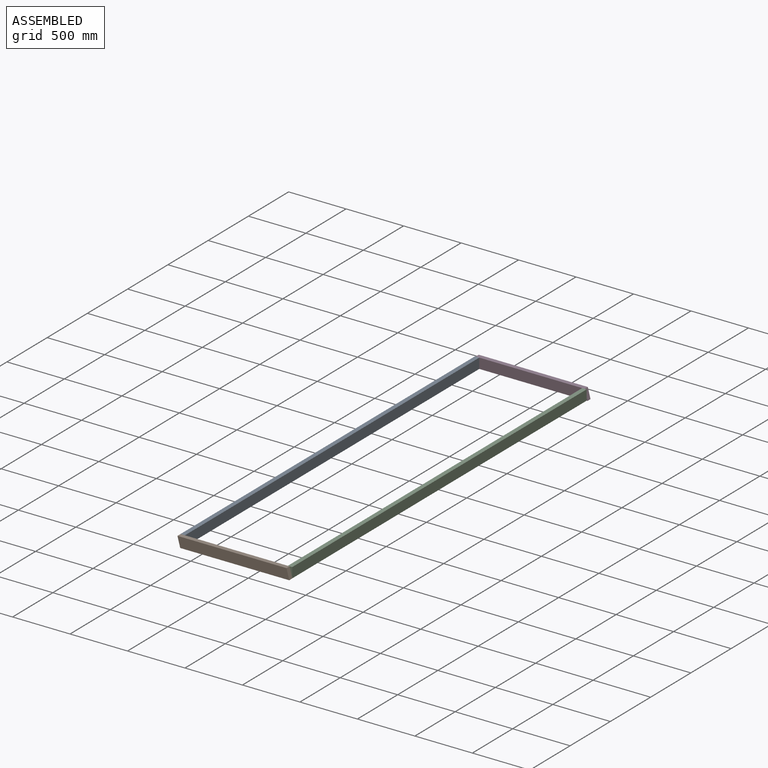
[diagram: assembled view]
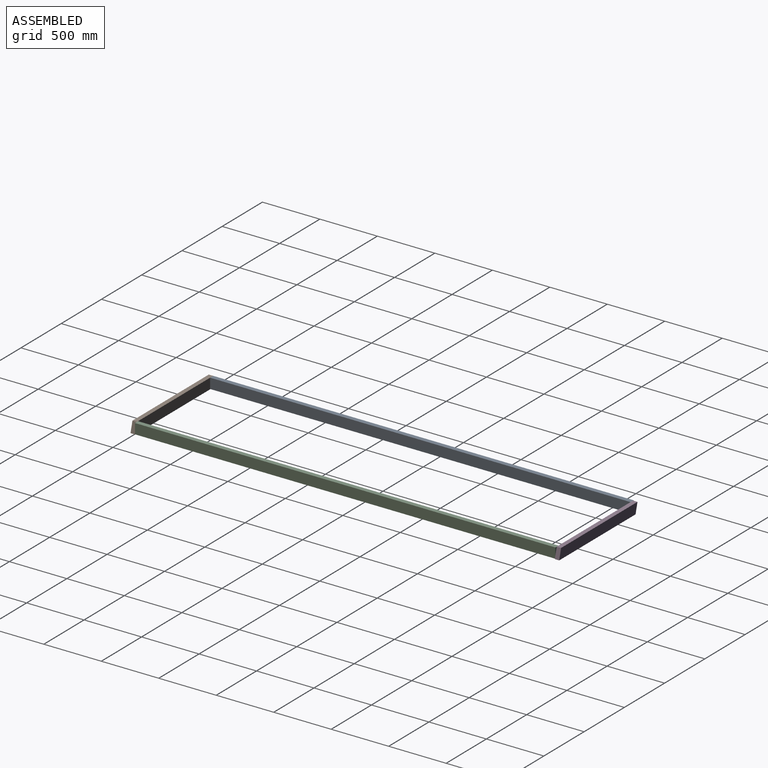
[diagram: assembled view, second angle]
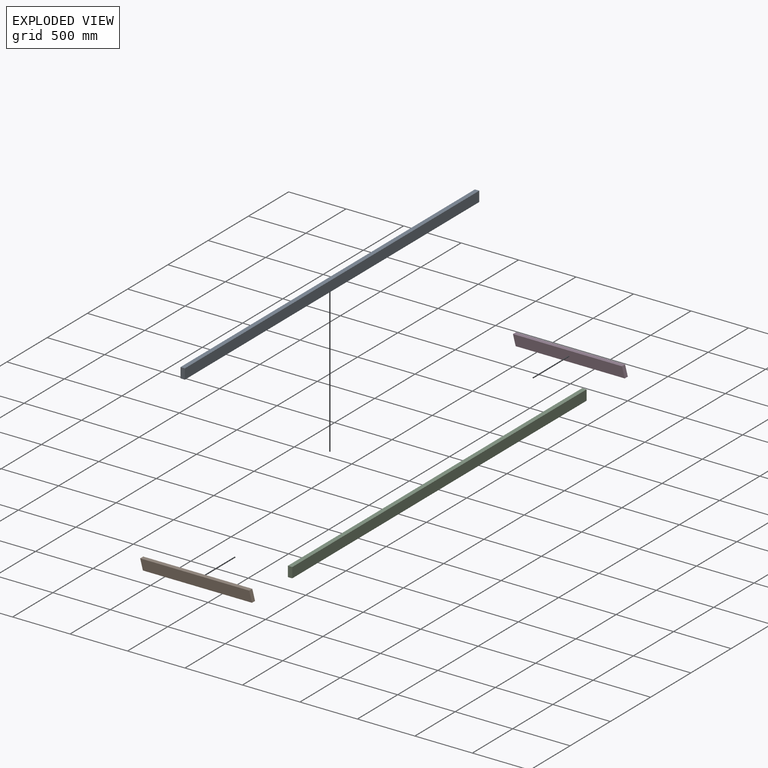
[diagram: exploded view]
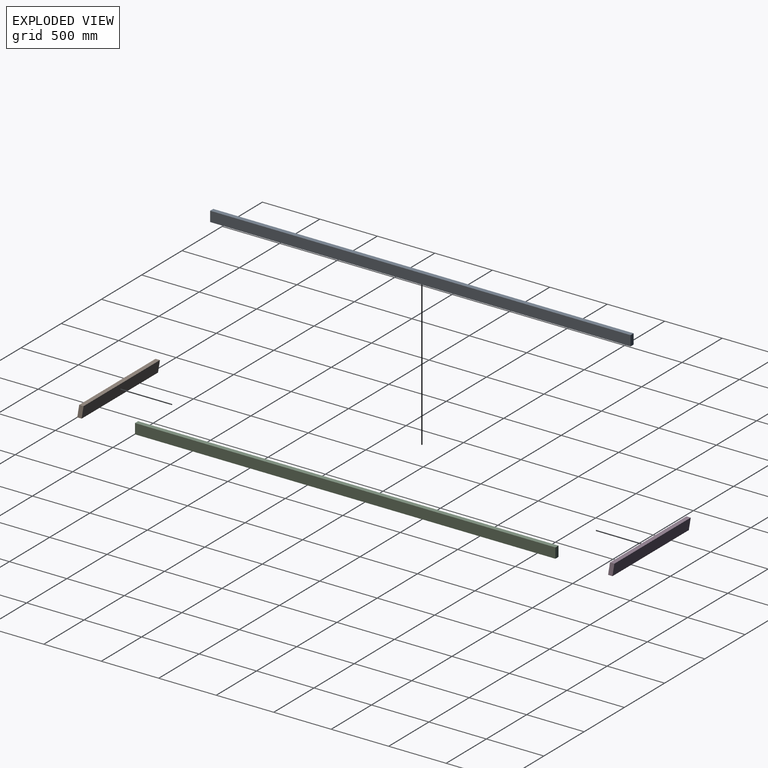
[diagram: exploded view, second angle]
ASSEMBLY  parts=4 mates=6
PART A: 6 faces, bbox 38.1x3657.6x88.9 mm
  f0: plane 3657.6x38.1mm, normal (0,0,-1), area 139354.6mm2, adj f1,f3,f4,f5
  f1: plane 3657.6x88.9mm, normal (1,0,0), area 325160.6mm2, adj f0,f2,f4,f5
  f2: plane 3657.6x38.1mm, normal (0,0,1), area 139354.6mm2, adj f1,f3,f4,f5
  f3: plane 3657.6x88.9mm, normal (-1,0,0), area 325160.6mm2, adj f0,f2,f4,f5
  f4: plane 88.9x38.1mm, normal (0,-1,0), area 3387.1mm2, adj f0,f1,f2,f3
  f5: plane 88.9x38.1mm, normal (0,1,0), area 3387.1mm2, adj f0,f1,f2,f3
PART B: 6 faces, bbox 38.1x972.8x88.9 mm
  f0: plane 972.82x88.9mm, normal (1,0,0), area 84361.1mm2, adj f2,f3,f4,f5
  f1: plane 972.82x88.9mm, normal (-1,0,0), area 84361.1mm2, adj f2,f3,f4,f5
  f2: plane 948.94x38.1mm, normal (0,0,-1), area 36154.8mm2, adj f0,f1,f4,f5
  f3: plane 948.94x38.1mm, normal (0,0,1), area 36154.8mm2, adj f0,f1,f4,f5
  f4: plane 88.9x38.1mm, normal (0,-0.97,0.26), area 3507.1mm2, adj f0,f1,f2,f3
  f5: plane 88.9x38.1mm, normal (0,0.97,-0.26), area 3507.1mm2, adj f0,f1,f2,f3
PART C: same geometry as A
PART D: same geometry as B
PLACE A rot(axis=(0,-1,0),180deg) t=(-1121.92,1231.75,88.98)mm
PLACE B rot(axis=(0,0,1),90deg) t=(-1140.97,-2444.9,88.98)mm
PLACE C t=(-188.37,1231.75,88.98)mm fixed
PLACE D rot(axis=(0,0,1),90deg) t=(-1134.52,1250.8,88.98)mm
MATE planar A.f0 <-> B.f3  axis (0,0,1) through (-1121.92,-597.05,133.43)mm
MATE planar A.f5 <-> D.f1  axis (0,1,0) through (-1121.92,1231.75,88.98)mm
MATE planar A.f0 <-> D.f3  axis (0,0,1) through (-1121.92,-597.05,133.43)mm
MATE planar C.f2 <-> D.f3  axis (0,0,1) through (-188.37,-597.05,133.43)mm
MATE planar D.f1 <-> C.f5  axis (0,-1,0) through (-648.11,1231.75,88.98)mm
MATE planar A.f4 <-> B.f0  axis (0,-1,0) through (-1121.92,-2425.85,88.98)mm
